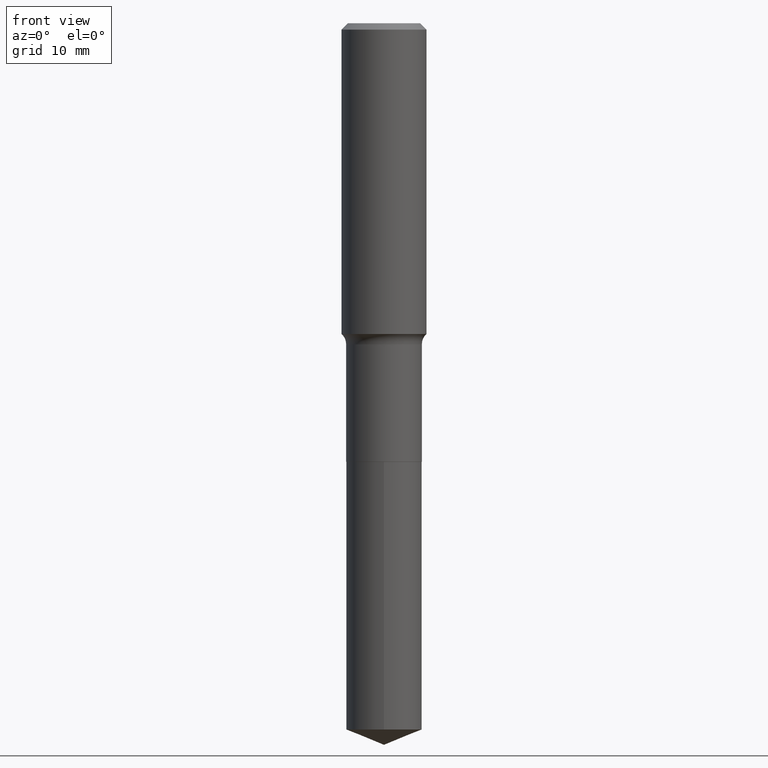
[diagram: clean part render]
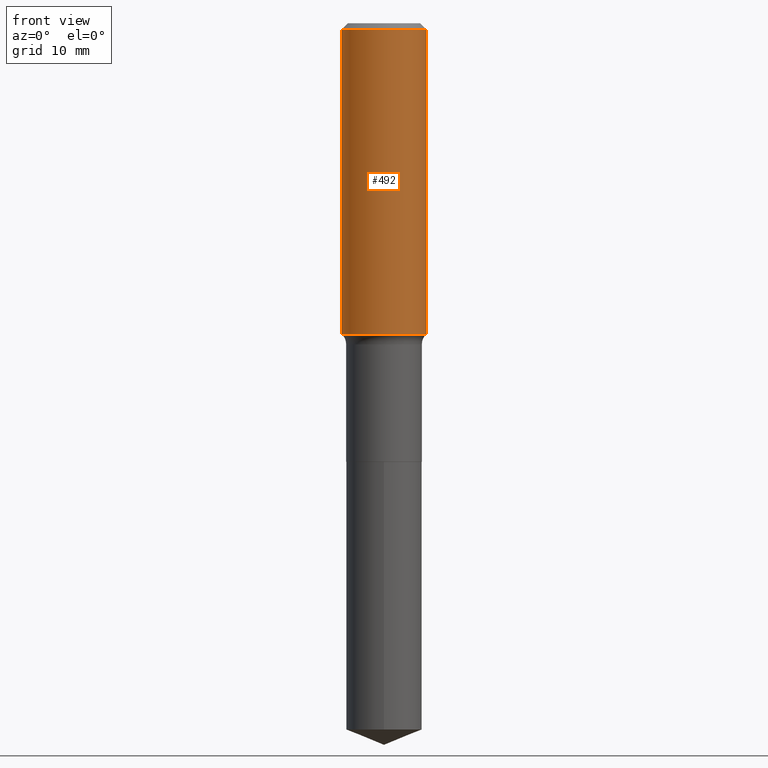
[diagram: same view with one face highlighted and labeled with its STEP entity id]
A machine part, front view. The second image highlights one B-rep face of the part: STEP entity #492.
In plain terms, the highlighted cylindrical surface (partial cylindrical patch) has radius 5.9995 mm, axis along (-0, 0, 1).
Its self-contained STEP definition (entity closure, byte-faithful):
#1 = CYLINDRICAL_SURFACE ( 'NONE', #223, 0.2362000000000001043 ) ;
#3 = EDGE_CURVE ( 'NONE', #185, #444, #270, .T. ) ;
#75 = ORIENTED_EDGE ( 'NONE', *, *, #257, .T. ) ;
#102 = CIRCLE ( 'NONE', #272, 0.2362000000000002153 ) ;
#109 = FACE_OUTER_BOUND ( 'NONE', #409, .T. ) ;
#148 = DIRECTION ( 'NONE',  ( 1.000000000000000000, -6.982962677686266711E-15, 0.000000000000000000 ) ) ;
#175 = CARTESIAN_POINT ( 'NONE',  ( 0.2362000000000002153, -7.687431470917942307E-15, -1.729367881556277187 ) ) ;
#185 = VERTEX_POINT ( 'NONE', #371 ) ;
#187 = VERTEX_POINT ( 'NONE', #175 ) ;
#218 = ORIENTED_EDGE ( 'NONE', *, *, #403, .T. ) ;
#223 = AXIS2_PLACEMENT_3D ( 'NONE', #263, #418, #226 ) ;
#226 = DIRECTION ( 'NONE',  ( 1.000000000000000000, -6.982962677686266711E-15, 4.876176775795935793E-29 ) ) ;
#229 = CARTESIAN_POINT ( 'NONE',  ( 8.664295980313993487E-31, -1.237031838352134079E-16, -0.03543000000000021826 ) ) ;
#257 = EDGE_CURVE ( 'NONE', #187, #266, #366, .T. ) ;
#258 = CARTESIAN_POINT ( 'NONE',  ( 4.229115208764347773E-29, -6.038055686448444993E-15, -1.729367881556277187 ) ) ;
#263 = CARTESIAN_POINT ( 'NONE',  ( 0.000000000000000000, 0.000000000000000000, 0.000000000000000000 ) ) ;
#266 = VERTEX_POINT ( 'NONE', #408 ) ;
#270 = LINE ( 'NONE', #379, #417 ) ;
#272 = AXIS2_PLACEMENT_3D ( 'NONE', #258, #452, #148 ) ;
#300 = DIRECTION ( 'NONE',  ( -2.445468806185136597E-29, 3.491481338843145583E-15, 1.000000000000000000 ) ) ;
#311 = ORIENTED_EDGE ( 'NONE', *, *, #3, .F. ) ;
#331 = AXIS2_PLACEMENT_3D ( 'NONE', #229, #300, #415 ) ;
#354 = DIRECTION ( 'NONE',  ( -2.445468806185136877E-29, 3.491481338843145188E-15, 1.000000000000000000 ) ) ;
#366 = LINE ( 'NONE', #445, #410 ) ;
#371 = CARTESIAN_POINT ( 'NONE',  ( -0.2362000000000002153, -4.359753744583087021E-15, -1.729367881556277187 ) ) ;
#372 = ORIENTED_EDGE ( 'NONE', *, *, #478, .F. ) ;
#373 = DIRECTION ( 'NONE',  ( -2.445468806185136877E-29, 3.491481338843145188E-15, 1.000000000000000000 ) ) ;
#379 = CARTESIAN_POINT ( 'NONE',  ( -0.2362000000000001043, 1.678301941865357380E-15, -1.161852468318209317E-29 ) ) ;
#402 = CIRCLE ( 'NONE', #331, 0.2361999999999999933 ) ;
#403 = EDGE_CURVE ( 'NONE', #185, #187, #102, .T. ) ;
#408 = CARTESIAN_POINT ( 'NONE',  ( 0.2361999999999999933, -1.773078968304709514E-15, -0.03543000000000021826 ) ) ;
#409 = EDGE_LOOP ( 'NONE', ( #311, #218, #75, #372 ) ) ;
#410 = VECTOR ( 'NONE', #373, 39.37007874015748143 ) ;
#415 = DIRECTION ( 'NONE',  ( 1.000000000000000000, -6.982962677686266711E-15, 0.000000000000000000 ) ) ;
#417 = VECTOR ( 'NONE', #354, 39.37007874015748143 ) ;
#418 = DIRECTION ( 'NONE',  ( -2.445468806185136597E-29, 3.491481338843145583E-15, 1.000000000000000000 ) ) ;
#422 = CARTESIAN_POINT ( 'NONE',  ( -0.2361999999999999933, -1.402577493276471315E-15, -0.03543000000000021826 ) ) ;
#444 = VERTEX_POINT ( 'NONE', #422 ) ;
#445 = CARTESIAN_POINT ( 'NONE',  ( 0.2362000000000001043, -1.649375784469496920E-15, 1.151752954443000508E-29 ) ) ;
#452 = DIRECTION ( 'NONE',  ( -2.445468806185136597E-29, 3.491481338843145583E-15, 1.000000000000000000 ) ) ;
#478 = EDGE_CURVE ( 'NONE', #444, #266, #402, .T. ) ;
#492 = ADVANCED_FACE ( 'NONE', ( #109 ), #1, .T. ) ;